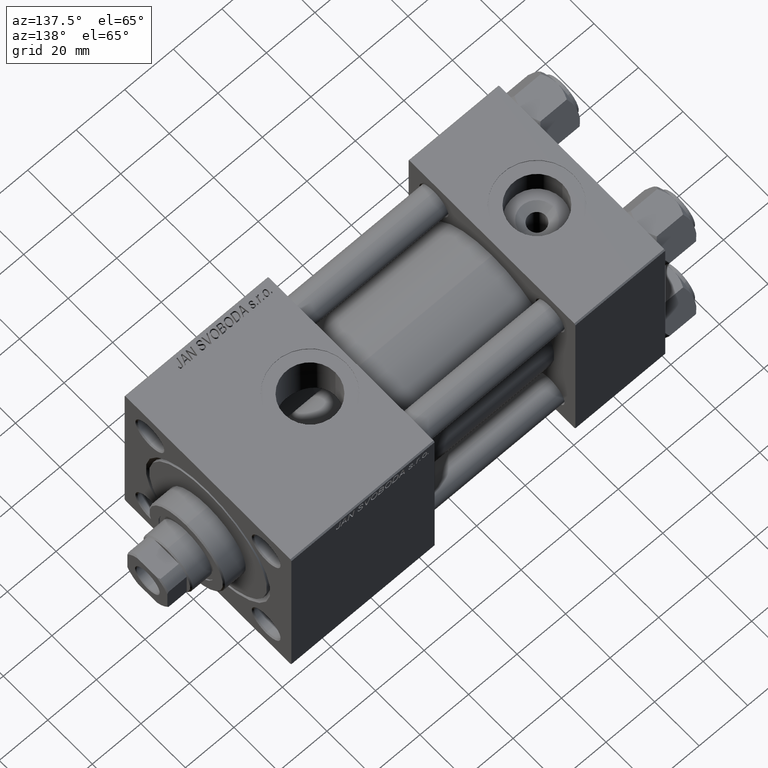
[diagram: clean part render]
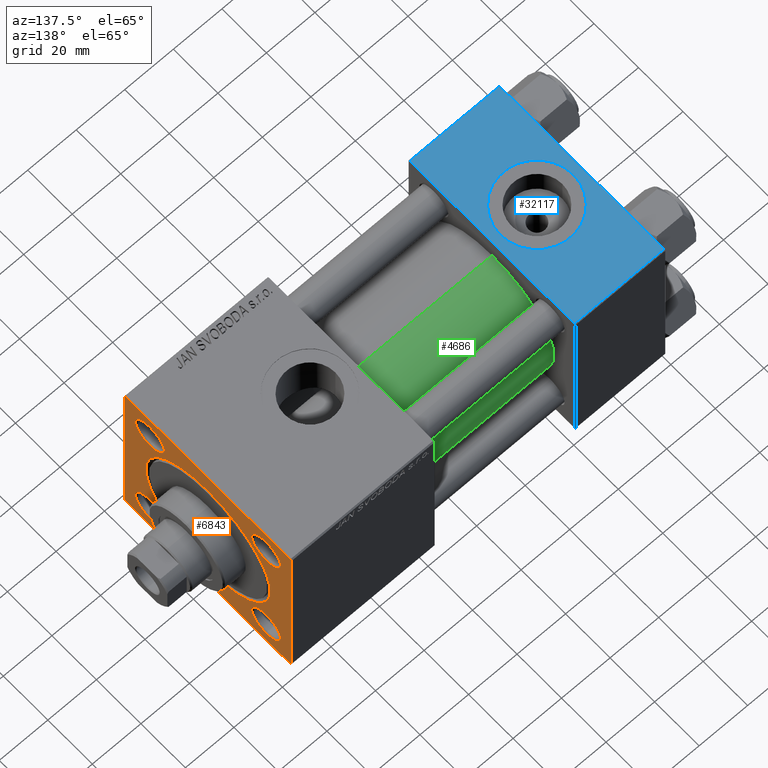
[diagram: same view with three faces highlighted in distinct colors, each labeled with its STEP entity id]
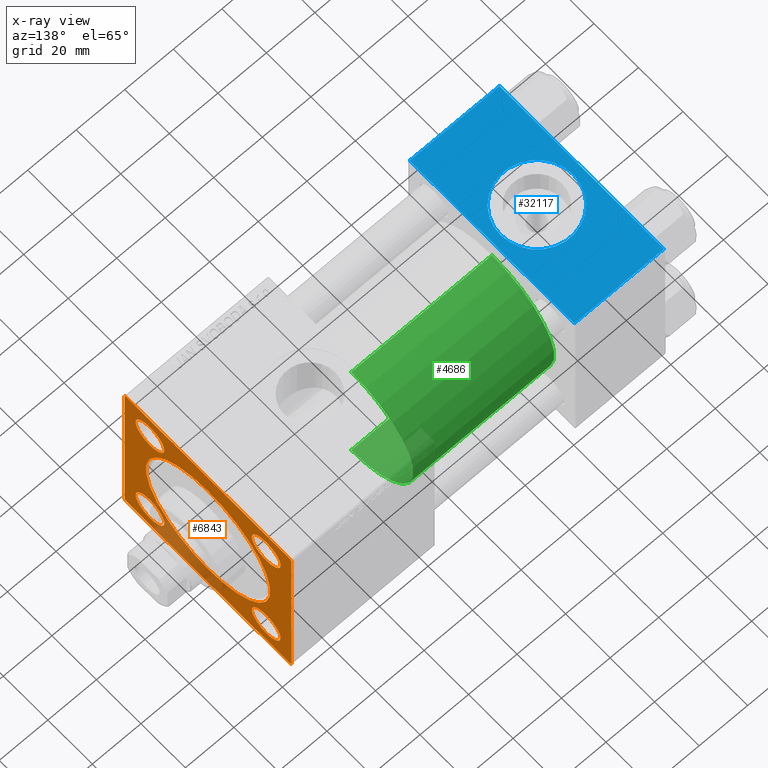
[diagram: x-ray of the same camera — body ghosted, the three highlighted faces saturated]
A machine part, auxiliary view with three faces highlighted in distinct colors.
The next image is the same camera in x-ray (body ghosted, the three faces saturated) — at least one of them is partly hidden behind the body in this view.
Their STEP definitions:

[orange] entity #6843 — the highlighted planar face has unit normal (-1, 0, 0).
#509 = DIRECTION ( 'NONE',  ( -1.000000000000000000, -0.000000000000000000, 0.000000000000000000 ) ) ;
#2393 = EDGE_CURVE ( 'NONE', #29654, #13604, #14383, .T. ) ;
#2442 = CIRCLE ( 'NONE', #12974, 6.500000000000008882 ) ;
#2495 = CARTESIAN_POINT ( 'NONE',  ( 154.0000000000000000, -37.50000000000000000, 37.49999999999997868 ) ) ;
#2687 = CARTESIAN_POINT ( 'NONE',  ( 154.0000000000000000, 26.14999999999999858, -26.15000000000000213 ) ) ;
#2988 = DIRECTION ( 'NONE',  ( 0.000000000000000000, -9.251858538542972814E-17, -1.000000000000000000 ) ) ;
#3021 = DIRECTION ( 'NONE',  ( 0.000000000000000000, -1.000000000000000000, 0.000000000000000000 ) ) ;
#4124 = DIRECTION ( 'NONE',  ( 0.000000000000000000, 0.000000000000000000, 1.000000000000000000 ) ) ;
#4404 = CARTESIAN_POINT ( 'NONE',  ( 154.0000000000000000, 0.000000000000000000, 0.000000000000000000 ) ) ;
#4829 = DIRECTION ( 'NONE',  ( -1.000000000000000000, -0.000000000000000000, 0.000000000000000000 ) ) ;
#4907 = CARTESIAN_POINT ( 'NONE',  ( 154.0000000000000000, -26.14999999999999147, 19.64999999999999503 ) ) ;
#4915 = PLANE ( 'NONE',  #40493 ) ;
#5440 = DIRECTION ( 'NONE',  ( 0.000000000000000000, -1.000000000000000000, -1.850371707708594316E-16 ) ) ;
#5598 = LINE ( 'NONE', #25370, #8249 ) ;
#5712 = AXIS2_PLACEMENT_3D ( 'NONE', #21608, #25435, #29240 ) ;
#6820 = ORIENTED_EDGE ( 'NONE', *, *, #12049, .T. ) ;
#6843 = ADVANCED_FACE ( 'NONE', ( #13009, #46779, #43471, #47801, #36370, #43229 ), #4915, .F. ) ;
#7502 = CARTESIAN_POINT ( 'NONE',  ( 154.0000000000000000, 26.14999999999999858, 26.15000000000000213 ) ) ;
#7521 = AXIS2_PLACEMENT_3D ( 'NONE', #19201, #34968, #18710 ) ;
#8249 = VECTOR ( 'NONE', #49223, 1000.000000000000000 ) ;
#8376 = CARTESIAN_POINT ( 'NONE',  ( 154.0000000000000000, 26.14999999999999858, 26.15000000000000213 ) ) ;
#8498 = ORIENTED_EDGE ( 'NONE', *, *, #45082, .T. ) ;
#8614 = DIRECTION ( 'NONE',  ( 0.000000000000000000, 0.000000000000000000, 1.000000000000000000 ) ) ;
#9020 = EDGE_CURVE ( 'NONE', #13604, #29654, #2442, .T. ) ;
#9517 = AXIS2_PLACEMENT_3D ( 'NONE', #2687, #11290, #46068 ) ;
#9643 = LINE ( 'NONE', #25125, #31105 ) ;
#9653 = EDGE_CURVE ( 'NONE', #46961, #32678, #34467, .T. ) ;
#10285 = CARTESIAN_POINT ( 'NONE',  ( 154.0000000000000000, 37.50000000000000000, -36.99999999999999289 ) ) ;
#10670 = EDGE_CURVE ( 'NONE', #30610, #26873, #43740, .T. ) ;
#10683 = AXIS2_PLACEMENT_3D ( 'NONE', #32008, #46745, #4124 ) ;
#10809 = VECTOR ( 'NONE', #35274, 1000.000000000000114 ) ;
#11290 = DIRECTION ( 'NONE',  ( -1.000000000000000000, -0.000000000000000000, 0.000000000000000000 ) ) ;
#11397 = CARTESIAN_POINT ( 'NONE',  ( 154.0000000000000000, 3.429011037612588881E-15, 27.99999999999999645 ) ) ;
#11918 = LINE ( 'NONE', #42896, #10809 ) ;
#12003 = DIRECTION ( 'NONE',  ( 0.000000000000000000, 0.000000000000000000, 1.000000000000000000 ) ) ;
#12049 = EDGE_CURVE ( 'NONE', #20129, #36053, #29995, .T. ) ;
#12116 = CARTESIAN_POINT ( 'NONE',  ( 154.0000000000000000, -36.99999999999997158, 37.49999999999997868 ) ) ;
#12390 = ORIENTED_EDGE ( 'NONE', *, *, #45258, .T. ) ;
#12416 = EDGE_CURVE ( 'NONE', #26873, #30610, #34061, .T. ) ;
#12743 = DIRECTION ( 'NONE',  ( -1.000000000000000000, -0.000000000000000000, 0.000000000000000000 ) ) ;
#12974 = AXIS2_PLACEMENT_3D ( 'NONE', #7502, #31584, #38708 ) ;
#13009 = FACE_BOUND ( 'NONE', #31662, .T. ) ;
#13114 = CIRCLE ( 'NONE', #10683, 6.500000000000002665 ) ;
#13199 = VECTOR ( 'NONE', #5440, 1000.000000000000000 ) ;
#13604 = VERTEX_POINT ( 'NONE', #40826 ) ;
#13784 = ORIENTED_EDGE ( 'NONE', *, *, #20546, .T. ) ;
#13824 = CARTESIAN_POINT ( 'NONE',  ( 154.0000000000000000, 37.00000000000000000, 37.49999999999999289 ) ) ;
#14085 = CARTESIAN_POINT ( 'NONE',  ( 154.0000000000000000, 26.14999999999999858, -32.64999999999998437 ) ) ;
#14383 = CIRCLE ( 'NONE', #33840, 6.500000000000008882 ) ;
#15829 = CARTESIAN_POINT ( 'NONE',  ( 154.0000000000000000, 37.50000000000000000, -36.99999999999999289 ) ) ;
#16087 = CARTESIAN_POINT ( 'NONE',  ( 154.0000000000000000, 37.50000000000000000, 37.49999999999999289 ) ) ;
#16260 = CARTESIAN_POINT ( 'NONE',  ( 154.0000000000000000, -26.15000000000000213, -32.64999999999998437 ) ) ;
#16310 = EDGE_CURVE ( 'NONE', #48693, #30921, #13114, .T. ) ;
#16419 = CIRCLE ( 'NONE', #7521, 6.500000000000002665 ) ;
#16441 = VERTEX_POINT ( 'NONE', #16651 ) ;
#16651 = CARTESIAN_POINT ( 'NONE',  ( 154.0000000000000000, -37.50000000000000711, -37.00000000000000711 ) ) ;
#16833 = CIRCLE ( 'NONE', #9517, 6.499999999999974243 ) ;
#16839 = CARTESIAN_POINT ( 'NONE',  ( 154.0000000000000000, -37.50000000000000000, 36.99999999999995026 ) ) ;
#17001 = ORIENTED_EDGE ( 'NONE', *, *, #2393, .T. ) ;
#17704 = EDGE_CURVE ( 'NONE', #40278, #23188, #9643, .T. ) ;
#18214 = DIRECTION ( 'NONE',  ( 0.000000000000000000, 0.000000000000000000, -1.000000000000000000 ) ) ;
#18242 = CARTESIAN_POINT ( 'NONE',  ( 154.0000000000000000, 0.000000000000000000, 0.000000000000000000 ) ) ;
#18383 = EDGE_CURVE ( 'NONE', #21598, #19553, #19427, .T. ) ;
#18710 = DIRECTION ( 'NONE',  ( 0.000000000000000000, 0.000000000000000000, 1.000000000000000000 ) ) ;
#19201 = CARTESIAN_POINT ( 'NONE',  ( 154.0000000000000000, -26.14999999999999147, 26.14999999999999503 ) ) ;
#19427 = CIRCLE ( 'NONE', #38899, 6.499999999999974243 ) ;
#19553 = VERTEX_POINT ( 'NONE', #14085 ) ;
#19926 = DIRECTION ( 'NONE',  ( 0.000000000000000000, 0.000000000000000000, 1.000000000000000000 ) ) ;
#19966 = DIRECTION ( 'NONE',  ( -0.000000000000000000, -0.7071067811865474617, -0.7071067811865474617 ) ) ;
#20129 = VERTEX_POINT ( 'NONE', #28143 ) ;
#20546 = EDGE_CURVE ( 'NONE', #36053, #20129, #32890, .T. ) ;
#21030 = ORIENTED_EDGE ( 'NONE', *, *, #17704, .F. ) ;
#21598 = VERTEX_POINT ( 'NONE', #47862 ) ;
#21608 = CARTESIAN_POINT ( 'NONE',  ( 154.0000000000000000, -26.15000000000000213, -26.15000000000000213 ) ) ;
#22367 = ORIENTED_EDGE ( 'NONE', *, *, #47350, .T. ) ;
#23188 = VERTEX_POINT ( 'NONE', #37188 ) ;
#23308 = EDGE_LOOP ( 'NONE', ( #8498, #29470, #21030, #22367, #35528, #38255, #40141, #43963 ) ) ;
#23735 = VECTOR ( 'NONE', #2988, 1000.000000000000000 ) ;
#23744 = DIRECTION ( 'NONE',  ( -1.000000000000000000, -0.000000000000000000, 0.000000000000000000 ) ) ;
#23833 = CARTESIAN_POINT ( 'NONE',  ( 154.0000000000000000, 26.14999999999999858, 19.64999999999999503 ) ) ;
#24492 = CARTESIAN_POINT ( 'NONE',  ( 154.0000000000000000, 26.14999999999999858, -26.15000000000000213 ) ) ;
#24909 = EDGE_CURVE ( 'NONE', #19553, #21598, #16833, .T. ) ;
#25125 = CARTESIAN_POINT ( 'NONE',  ( 154.0000000000000000, 37.50000000000000000, -37.50000000000000000 ) ) ;
#25370 = CARTESIAN_POINT ( 'NONE',  ( 154.0000000000000000, -36.99999999999998579, -37.50000000000000000 ) ) ;
#25435 = DIRECTION ( 'NONE',  ( -1.000000000000000000, -0.000000000000000000, 0.000000000000000000 ) ) ;
#25592 = AXIS2_PLACEMENT_3D ( 'NONE', #42540, #38986, #30853 ) ;
#25793 = VERTEX_POINT ( 'NONE', #12116 ) ;
#26696 = AXIS2_PLACEMENT_3D ( 'NONE', #45953, #509, #38591 ) ;
#26873 = VERTEX_POINT ( 'NONE', #39477 ) ;
#28143 = CARTESIAN_POINT ( 'NONE',  ( 154.0000000000000000, -26.15000000000000213, -19.65000000000002345 ) ) ;
#29086 = VECTOR ( 'NONE', #18214, 1000.000000000000000 ) ;
#29240 = DIRECTION ( 'NONE',  ( 0.000000000000000000, 0.000000000000000000, 1.000000000000000000 ) ) ;
#29470 = ORIENTED_EDGE ( 'NONE', *, *, #38961, .T. ) ;
#29546 = VECTOR ( 'NONE', #46797, 999.9999999999998863 ) ;
#29654 = VERTEX_POINT ( 'NONE', #23833 ) ;
#29995 = CIRCLE ( 'NONE', #5712, 6.499999999999974243 ) ;
#30610 = VERTEX_POINT ( 'NONE', #11397 ) ;
#30853 = DIRECTION ( 'NONE',  ( 0.000000000000000000, 0.000000000000000000, 1.000000000000000000 ) ) ;
#30878 = CARTESIAN_POINT ( 'NONE',  ( 154.0000000000000000, -26.14999999999999147, 32.64999999999999858 ) ) ;
#30921 = VERTEX_POINT ( 'NONE', #30878 ) ;
#31105 = VECTOR ( 'NONE', #3021, 1000.000000000000000 ) ;
#31584 = DIRECTION ( 'NONE',  ( -1.000000000000000000, -0.000000000000000000, 0.000000000000000000 ) ) ;
#31662 = EDGE_LOOP ( 'NONE', ( #17001, #38889 ) ) ;
#32008 = CARTESIAN_POINT ( 'NONE',  ( 154.0000000000000000, -26.14999999999999147, 26.14999999999999503 ) ) ;
#32214 = VERTEX_POINT ( 'NONE', #16839 ) ;
#32678 = VERTEX_POINT ( 'NONE', #10285 ) ;
#32747 = DIRECTION ( 'NONE',  ( -1.000000000000000000, -0.000000000000000000, 0.000000000000000000 ) ) ;
#32890 = CIRCLE ( 'NONE', #25592, 6.499999999999974243 ) ;
#33035 = VECTOR ( 'NONE', #19966, 1000.000000000000114 ) ;
#33427 = EDGE_LOOP ( 'NONE', ( #13784, #6820 ) ) ;
#33840 = AXIS2_PLACEMENT_3D ( 'NONE', #8376, #4829, #8614 ) ;
#34061 = CIRCLE ( 'NONE', #39730, 27.99999999999999645 ) ;
#34467 = LINE ( 'NONE', #49202, #29086 ) ;
#34502 = EDGE_LOOP ( 'NONE', ( #40657, #40854 ) ) ;
#34968 = DIRECTION ( 'NONE',  ( -1.000000000000000000, -0.000000000000000000, 0.000000000000000000 ) ) ;
#35274 = DIRECTION ( 'NONE',  ( 0.000000000000000000, -0.7071067811865474617, 0.7071067811865474617 ) ) ;
#35528 = ORIENTED_EDGE ( 'NONE', *, *, #9653, .F. ) ;
#36053 = VERTEX_POINT ( 'NONE', #16260 ) ;
#36370 = FACE_BOUND ( 'NONE', #34502, .T. ) ;
#36541 = EDGE_LOOP ( 'NONE', ( #50143, #12390 ) ) ;
#36756 = CARTESIAN_POINT ( 'NONE',  ( 154.0000000000000000, 37.00000000000000000, -37.50000000000000000 ) ) ;
#36816 = DIRECTION ( 'NONE',  ( 0.000000000000000000, 0.000000000000000000, 1.000000000000000000 ) ) ;
#36821 = EDGE_LOOP ( 'NONE', ( #45903, #45230 ) ) ;
#37188 = CARTESIAN_POINT ( 'NONE',  ( 154.0000000000000000, -36.99999999999998579, -37.50000000000000000 ) ) ;
#38255 = ORIENTED_EDGE ( 'NONE', *, *, #43303, .T. ) ;
#38591 = DIRECTION ( 'NONE',  ( 0.000000000000000000, 0.000000000000000000, 1.000000000000000000 ) ) ;
#38708 = DIRECTION ( 'NONE',  ( 0.000000000000000000, 0.000000000000000000, 1.000000000000000000 ) ) ;
#38889 = ORIENTED_EDGE ( 'NONE', *, *, #9020, .T. ) ;
#38899 = AXIS2_PLACEMENT_3D ( 'NONE', #24492, #23744, #19926 ) ;
#38961 = EDGE_CURVE ( 'NONE', #16441, #23188, #5598, .T. ) ;
#38986 = DIRECTION ( 'NONE',  ( -1.000000000000000000, -0.000000000000000000, 0.000000000000000000 ) ) ;
#39477 = CARTESIAN_POINT ( 'NONE',  ( 154.0000000000000000, 0.000000000000000000, -27.99999999999999645 ) ) ;
#39534 = VERTEX_POINT ( 'NONE', #13824 ) ;
#39700 = LINE ( 'NONE', #15829, #29546 ) ;
#39730 = AXIS2_PLACEMENT_3D ( 'NONE', #18242, #32747, #36816 ) ;
#40141 = ORIENTED_EDGE ( 'NONE', *, *, #45667, .T. ) ;
#40278 = VERTEX_POINT ( 'NONE', #36756 ) ;
#40493 = AXIS2_PLACEMENT_3D ( 'NONE', #4404, #12743, #12003 ) ;
#40657 = ORIENTED_EDGE ( 'NONE', *, *, #12416, .T. ) ;
#40826 = CARTESIAN_POINT ( 'NONE',  ( 154.0000000000000000, 26.14999999999999858, 32.65000000000001279 ) ) ;
#40854 = ORIENTED_EDGE ( 'NONE', *, *, #10670, .T. ) ;
#42540 = CARTESIAN_POINT ( 'NONE',  ( 154.0000000000000000, -26.15000000000000213, -26.15000000000000213 ) ) ;
#42838 = LINE ( 'NONE', #47650, #33035 ) ;
#42896 = CARTESIAN_POINT ( 'NONE',  ( 154.0000000000000000, 37.00000000000000000, 37.49999999999999289 ) ) ;
#43229 = FACE_OUTER_BOUND ( 'NONE', #23308, .T. ) ;
#43303 = EDGE_CURVE ( 'NONE', #46961, #39534, #11918, .T. ) ;
#43471 = FACE_BOUND ( 'NONE', #33427, .T. ) ;
#43740 = CIRCLE ( 'NONE', #26696, 27.99999999999999645 ) ;
#43963 = ORIENTED_EDGE ( 'NONE', *, *, #48143, .T. ) ;
#44882 = LINE ( 'NONE', #2495, #23735 ) ;
#45082 = EDGE_CURVE ( 'NONE', #32214, #16441, #44882, .T. ) ;
#45230 = ORIENTED_EDGE ( 'NONE', *, *, #18383, .T. ) ;
#45258 = EDGE_CURVE ( 'NONE', #30921, #48693, #16419, .T. ) ;
#45667 = EDGE_CURVE ( 'NONE', #39534, #25793, #47071, .T. ) ;
#45903 = ORIENTED_EDGE ( 'NONE', *, *, #24909, .T. ) ;
#45953 = CARTESIAN_POINT ( 'NONE',  ( 154.0000000000000000, 0.000000000000000000, 0.000000000000000000 ) ) ;
#46068 = DIRECTION ( 'NONE',  ( 0.000000000000000000, 0.000000000000000000, 1.000000000000000000 ) ) ;
#46745 = DIRECTION ( 'NONE',  ( -1.000000000000000000, -0.000000000000000000, 0.000000000000000000 ) ) ;
#46779 = FACE_BOUND ( 'NONE', #36541, .T. ) ;
#46797 = DIRECTION ( 'NONE',  ( -0.000000000000000000, 0.7071067811865425767, 0.7071067811865525687 ) ) ;
#46961 = VERTEX_POINT ( 'NONE', #48774 ) ;
#47071 = LINE ( 'NONE', #16087, #13199 ) ;
#47350 = EDGE_CURVE ( 'NONE', #40278, #32678, #39700, .T. ) ;
#47650 = CARTESIAN_POINT ( 'NONE',  ( 154.0000000000000000, -37.50000000000000000, 36.99999999999995026 ) ) ;
#47801 = FACE_BOUND ( 'NONE', #36821, .T. ) ;
#47862 = CARTESIAN_POINT ( 'NONE',  ( 154.0000000000000000, 26.14999999999999858, -19.65000000000002345 ) ) ;
#48143 = EDGE_CURVE ( 'NONE', #25793, #32214, #42838, .T. ) ;
#48693 = VERTEX_POINT ( 'NONE', #4907 ) ;
#48774 = CARTESIAN_POINT ( 'NONE',  ( 154.0000000000000000, 37.50000000000000000, 36.99999999999999289 ) ) ;
#49202 = CARTESIAN_POINT ( 'NONE',  ( 154.0000000000000000, 37.50000000000000000, 37.49999999999999289 ) ) ;
#49223 = DIRECTION ( 'NONE',  ( 0.000000000000000000, 0.7071067811865671127, -0.7071067811865279218 ) ) ;
#50143 = ORIENTED_EDGE ( 'NONE', *, *, #16310, .T. ) ;

[blue] entity #32117 — the highlighted planar face has unit normal (0, 0, -1).
#1028 = VERTEX_POINT ( 'NONE', #30328 ) ;
#1109 = VECTOR ( 'NONE', #45988, 1000.000000000000000 ) ;
#1125 = DIRECTION ( 'NONE',  ( 0.000000000000000000, 0.000000000000000000, 1.000000000000000000 ) ) ;
#1561 = EDGE_CURVE ( 'NONE', #34409, #1028, #37333, .T. ) ;
#2607 = CARTESIAN_POINT ( 'NONE',  ( 37.00000000000000000, -37.00000000000000711, 37.49999999999999289 ) ) ;
#2648 = CARTESIAN_POINT ( 'NONE',  ( 0.000000000000000000, 36.99999999999999289, 37.50000000000000000 ) ) ;
#2969 = VERTEX_POINT ( 'NONE', #4638 ) ;
#3753 = DIRECTION ( 'NONE',  ( 0.000000000000000000, -1.000000000000000000, -9.251858538542971581E-17 ) ) ;
#3982 = AXIS2_PLACEMENT_3D ( 'NONE', #20137, #1125, #8236 ) ;
#4638 = CARTESIAN_POINT ( 'NONE',  ( 3.499999999999997780, -3.367200229209391300E-15, 37.50000000000000000 ) ) ;
#4771 = AXIS2_PLACEMENT_3D ( 'NONE', #43012, #31318, #8478 ) ;
#6664 = LINE ( 'NONE', #2607, #1109 ) ;
#8234 = EDGE_LOOP ( 'NONE', ( #31412, #44961, #31346, #12763 ) ) ;
#8236 = DIRECTION ( 'NONE',  ( 1.000000000000000000, 0.000000000000000000, 0.000000000000000000 ) ) ;
#8478 = DIRECTION ( 'NONE',  ( 0.000000000000000000, 1.000000000000000000, 9.251858538542971581E-17 ) ) ;
#9549 = VERTEX_POINT ( 'NONE', #14669 ) ;
#9668 = AXIS2_PLACEMENT_3D ( 'NONE', #13530, #18081, #33074 ) ;
#9964 = CARTESIAN_POINT ( 'NONE',  ( 37.00000000000000000, 36.99999999999999289, 37.50000000000000000 ) ) ;
#12268 = CARTESIAN_POINT ( 'NONE',  ( 0.000000000000000000, 36.99999999999999289, 37.50000000000000000 ) ) ;
#12763 = ORIENTED_EDGE ( 'NONE', *, *, #49569, .T. ) ;
#13530 = CARTESIAN_POINT ( 'NONE',  ( 18.50000000000000000, -5.204170427930421283E-15, 37.50000000000000000 ) ) ;
#14669 = CARTESIAN_POINT ( 'NONE',  ( 33.50000000000000000, -5.204170427930421283E-15, 37.50000000000000000 ) ) ;
#14839 = FACE_BOUND ( 'NONE', #37035, .T. ) ;
#18081 = DIRECTION ( 'NONE',  ( 0.000000000000000000, 0.000000000000000000, 1.000000000000000000 ) ) ;
#20137 = CARTESIAN_POINT ( 'NONE',  ( 18.50000000000000000, -5.204170427930421283E-15, 37.50000000000000000 ) ) ;
#21844 = ORIENTED_EDGE ( 'NONE', *, *, #32234, .F. ) ;
#22880 = VERTEX_POINT ( 'NONE', #28626 ) ;
#24988 = LINE ( 'NONE', #2648, #38729 ) ;
#25720 = DIRECTION ( 'NONE',  ( -1.000000000000000000, 0.000000000000000000, 0.000000000000000000 ) ) ;
#28626 = CARTESIAN_POINT ( 'NONE',  ( 0.000000000000000000, -37.00000000000000711, 37.49999999999999289 ) ) ;
#29500 = LINE ( 'NONE', #40449, #31503 ) ;
#29912 = EDGE_CURVE ( 'NONE', #9549, #2969, #41179, .T. ) ;
#30328 = CARTESIAN_POINT ( 'NONE',  ( 37.00000000000000000, -37.00000000000000711, 37.49999999999999289 ) ) ;
#31318 = DIRECTION ( 'NONE',  ( 0.000000000000000000, 9.251858538542971581E-17, -1.000000000000000000 ) ) ;
#31346 = ORIENTED_EDGE ( 'NONE', *, *, #1561, .F. ) ;
#31393 = CARTESIAN_POINT ( 'NONE',  ( 37.00000000000000000, 37.49999999999999289, 37.50000000000000000 ) ) ;
#31412 = ORIENTED_EDGE ( 'NONE', *, *, #31457, .T. ) ;
#31457 = EDGE_CURVE ( 'NONE', #34354, #22880, #29500, .T. ) ;
#31503 = VECTOR ( 'NONE', #44987, 1000.000000000000000 ) ;
#32117 = ADVANCED_FACE ( 'NONE', ( #14839, #46807 ), #47068, .F. ) ;
#32234 = EDGE_CURVE ( 'NONE', #2969, #9549, #33933, .T. ) ;
#33074 = DIRECTION ( 'NONE',  ( 1.000000000000000000, 0.000000000000000000, 0.000000000000000000 ) ) ;
#33933 = CIRCLE ( 'NONE', #3982, 15.00000000000000355 ) ;
#34354 = VERTEX_POINT ( 'NONE', #12268 ) ;
#34409 = VERTEX_POINT ( 'NONE', #9964 ) ;
#35471 = VECTOR ( 'NONE', #3753, 1000.000000000000000 ) ;
#37035 = EDGE_LOOP ( 'NONE', ( #45493, #21844 ) ) ;
#37333 = LINE ( 'NONE', #31393, #35471 ) ;
#38729 = VECTOR ( 'NONE', #25720, 1000.000000000000000 ) ;
#40449 = CARTESIAN_POINT ( 'NONE',  ( 0.000000000000000000, 37.49999999999999289, 37.50000000000000000 ) ) ;
#41179 = CIRCLE ( 'NONE', #9668, 15.00000000000000355 ) ;
#43012 = CARTESIAN_POINT ( 'NONE',  ( 37.00000000000000000, 37.49999999999999289, 37.50000000000000000 ) ) ;
#44413 = EDGE_CURVE ( 'NONE', #22880, #1028, #6664, .T. ) ;
#44961 = ORIENTED_EDGE ( 'NONE', *, *, #44413, .T. ) ;
#44987 = DIRECTION ( 'NONE',  ( 0.000000000000000000, -1.000000000000000000, -9.251858538542971581E-17 ) ) ;
#45493 = ORIENTED_EDGE ( 'NONE', *, *, #29912, .F. ) ;
#45988 = DIRECTION ( 'NONE',  ( 1.000000000000000000, 0.000000000000000000, 0.000000000000000000 ) ) ;
#46807 = FACE_OUTER_BOUND ( 'NONE', #8234, .T. ) ;
#47068 = PLANE ( 'NONE',  #4771 ) ;
#49569 = EDGE_CURVE ( 'NONE', #34409, #34354, #24988, .T. ) ;

[green] entity #4686 — the highlighted cylindrical surface (partial cylindrical patch) has radius 28 mm, axis along (-1, -0, -0).
#804 = VERTEX_POINT ( 'NONE', #28947 ) ;
#2975 = LINE ( 'NONE', #7030, #42712 ) ;
#3044 = CARTESIAN_POINT ( 'NONE',  ( 37.00000000000000000, -2.602085213965210642E-15, 28.00000000000000000 ) ) ;
#4338 = DIRECTION ( 'NONE',  ( -1.000000000000000000, -0.000000000000000000, -0.000000000000000000 ) ) ;
#4624 = CARTESIAN_POINT ( 'NONE',  ( 95.00000000000000000, -2.602085213965210642E-15, 0.000000000000000000 ) ) ;
#4686 = ADVANCED_FACE ( 'NONE', ( #12484 ), #32270, .T. ) ;
#5017 = VECTOR ( 'NONE', #4338, 1000.000000000000000 ) ;
#7030 = CARTESIAN_POINT ( 'NONE',  ( 95.00000000000000000, 8.269258236473776482E-16, -28.00000000000000000 ) ) ;
#8889 = LINE ( 'NONE', #47220, #5017 ) ;
#11976 = CARTESIAN_POINT ( 'NONE',  ( 95.00000000000000000, -2.602085213965210642E-15, 28.00000000000000000 ) ) ;
#12484 = FACE_OUTER_BOUND ( 'NONE', #36694, .T. ) ;
#14786 = AXIS2_PLACEMENT_3D ( 'NONE', #16599, #35898, #46811 ) ;
#15837 = DIRECTION ( 'NONE',  ( 1.000000000000000000, -0.000000000000000000, 0.000000000000000000 ) ) ;
#16599 = CARTESIAN_POINT ( 'NONE',  ( 95.00000000000000000, -2.602085213965210642E-15, 0.000000000000000000 ) ) ;
#16775 = EDGE_CURVE ( 'NONE', #25309, #44751, #8889, .T. ) ;
#16845 = CARTESIAN_POINT ( 'NONE',  ( 95.00000000000000000, 8.269258236473776482E-16, -28.00000000000000000 ) ) ;
#18490 = ORIENTED_EDGE ( 'NONE', *, *, #22952, .T. ) ;
#20437 = AXIS2_PLACEMENT_3D ( 'NONE', #27753, #15837, #31315 ) ;
#20467 = CIRCLE ( 'NONE', #14786, 28.00000000000000000 ) ;
#22952 = EDGE_CURVE ( 'NONE', #43094, #804, #2975, .T. ) ;
#25309 = VERTEX_POINT ( 'NONE', #11976 ) ;
#26554 = DIRECTION ( 'NONE',  ( -1.000000000000000000, -0.000000000000000000, -0.000000000000000000 ) ) ;
#27753 = CARTESIAN_POINT ( 'NONE',  ( 37.00000000000000000, -2.602085213965210642E-15, 0.000000000000000000 ) ) ;
#28947 = CARTESIAN_POINT ( 'NONE',  ( 37.00000000000000000, 8.269258236473776482E-16, -28.00000000000000000 ) ) ;
#31315 = DIRECTION ( 'NONE',  ( 0.000000000000000000, 0.000000000000000000, 1.000000000000000000 ) ) ;
#32270 = CYLINDRICAL_SURFACE ( 'NONE', #32282, 28.00000000000000000 ) ;
#32282 = AXIS2_PLACEMENT_3D ( 'NONE', #4624, #47776, #47264 ) ;
#35898 = DIRECTION ( 'NONE',  ( 1.000000000000000000, 0.000000000000000000, 0.000000000000000000 ) ) ;
#36694 = EDGE_LOOP ( 'NONE', ( #47160, #18490, #44208, #49805 ) ) ;
#41452 = EDGE_CURVE ( 'NONE', #804, #44751, #47240, .T. ) ;
#42712 = VECTOR ( 'NONE', #26554, 1000.000000000000000 ) ;
#43094 = VERTEX_POINT ( 'NONE', #16845 ) ;
#44208 = ORIENTED_EDGE ( 'NONE', *, *, #41452, .T. ) ;
#44751 = VERTEX_POINT ( 'NONE', #3044 ) ;
#45724 = EDGE_CURVE ( 'NONE', #43094, #25309, #20467, .T. ) ;
#46811 = DIRECTION ( 'NONE',  ( 0.000000000000000000, 0.000000000000000000, -1.000000000000000000 ) ) ;
#47160 = ORIENTED_EDGE ( 'NONE', *, *, #45724, .F. ) ;
#47220 = CARTESIAN_POINT ( 'NONE',  ( 95.00000000000000000, -2.602085213965210642E-15, 28.00000000000000000 ) ) ;
#47240 = CIRCLE ( 'NONE', #20437, 28.00000000000000000 ) ;
#47264 = DIRECTION ( 'NONE',  ( 0.000000000000000000, 0.000000000000000000, 1.000000000000000000 ) ) ;
#47776 = DIRECTION ( 'NONE',  ( -1.000000000000000000, -0.000000000000000000, -0.000000000000000000 ) ) ;
#49805 = ORIENTED_EDGE ( 'NONE', *, *, #16775, .F. ) ;